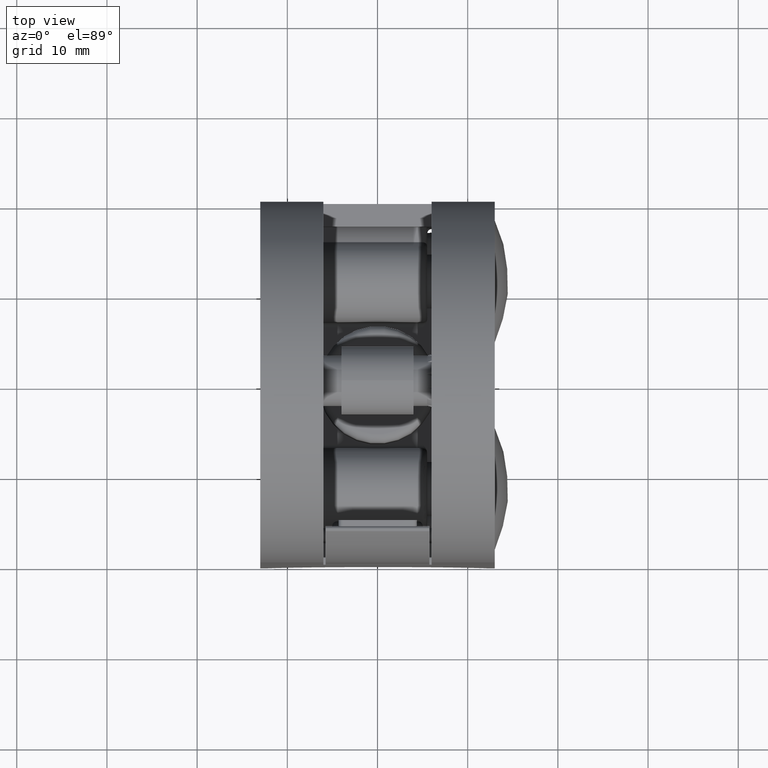
[diagram: clean part render]
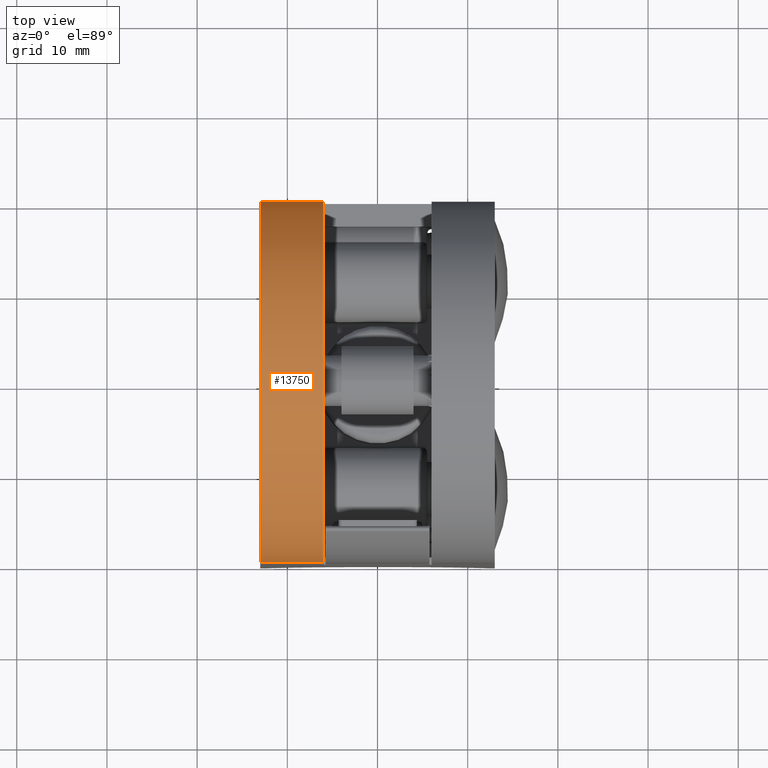
[diagram: same view with one face highlighted and labeled with its STEP entity id]
A machine part, top view. The second image highlights one B-rep face of the part: STEP entity #13750.
In plain terms, the highlighted cylindrical surface (partial cylindrical patch) has radius 20 mm, axis along (1, 0, 0).
Its self-contained STEP definition (entity closure, byte-faithful):
#2585 = EDGE_CURVE ( 'NONE', #7473, #5207, #47977, .T. ) ;
#2706 = ORIENTED_EDGE ( 'NONE', *, *, #21497, .T. ) ;
#5207 = VERTEX_POINT ( 'NONE', #6898 ) ;
#6693 = DIRECTION ( 'NONE',  ( 0.000000000000000000, 0.000000000000000000, -1.000000000000000000 ) ) ;
#6898 = CARTESIAN_POINT ( 'NONE',  ( 0.000000000000000000, -20.00000000000000355, 5.000000000000007994 ) ) ;
#7473 = VERTEX_POINT ( 'NONE', #70193 ) ;
#13750 = ADVANCED_FACE ( 'NONE', ( #28894 ), #57408, .T. ) ;
#17621 = CARTESIAN_POINT ( 'NONE',  ( 0.000000000000000000, -2.602085213965210642E-15, 5.000000000000004441 ) ) ;
#19040 = AXIS2_PLACEMENT_3D ( 'NONE', #39111, #38871, #55040 ) ;
#20323 = AXIS2_PLACEMENT_3D ( 'NONE', #65691, #43133, #59326 ) ;
#20696 = VECTOR ( 'NONE', #35102, 1000.000000000000000 ) ;
#21497 = EDGE_CURVE ( 'NONE', #54134, #5207, #61372, .T. ) ;
#24027 = EDGE_LOOP ( 'NONE', ( #54497, #40141, #68532, #2706 ) ) ;
#25000 = LINE ( 'NONE', #46004, #20696 ) ;
#28894 = FACE_OUTER_BOUND ( 'NONE', #24027, .T. ) ;
#29352 = CARTESIAN_POINT ( 'NONE',  ( -6.999999999999999112, -20.00000000000000355, 5.000000000000007994 ) ) ;
#34697 = CARTESIAN_POINT ( 'NONE',  ( -6.999999999999999112, -20.00000000000000355, 5.000000000000007994 ) ) ;
#35102 = DIRECTION ( 'NONE',  ( 1.000000000000000000, 0.000000000000000000, 0.000000000000000000 ) ) ;
#38871 = DIRECTION ( 'NONE',  ( 1.000000000000000000, 0.000000000000000000, 0.000000000000000000 ) ) ;
#39111 = CARTESIAN_POINT ( 'NONE',  ( -6.999999999999999112, -2.602085213965210642E-15, 5.000000000000004441 ) ) ;
#39859 = DIRECTION ( 'NONE',  ( 1.000000000000000000, 0.000000000000000000, 0.000000000000000000 ) ) ;
#40141 = ORIENTED_EDGE ( 'NONE', *, *, #50445, .F. ) ;
#42487 = EDGE_CURVE ( 'NONE', #63170, #54134, #55293, .T. ) ;
#43133 = DIRECTION ( 'NONE',  ( 1.000000000000000000, 0.000000000000000000, 0.000000000000000000 ) ) ;
#46004 = CARTESIAN_POINT ( 'NONE',  ( -6.999999999999999112, 20.00000000000000000, 5.000000000000007994 ) ) ;
#47977 = CIRCLE ( 'NONE', #58296, 20.00000000000000000 ) ;
#50445 = EDGE_CURVE ( 'NONE', #63170, #7473, #25000, .T. ) ;
#52084 = DIRECTION ( 'NONE',  ( 1.000000000000000000, 0.000000000000000000, 0.000000000000000000 ) ) ;
#54103 = CARTESIAN_POINT ( 'NONE',  ( -6.999999999999999112, 20.00000000000000000, 5.000000000000007994 ) ) ;
#54134 = VERTEX_POINT ( 'NONE', #34697 ) ;
#54497 = ORIENTED_EDGE ( 'NONE', *, *, #2585, .F. ) ;
#55040 = DIRECTION ( 'NONE',  ( 0.000000000000000000, 0.000000000000000000, -1.000000000000000000 ) ) ;
#55293 = CIRCLE ( 'NONE', #20323, 20.00000000000000000 ) ;
#56124 = VECTOR ( 'NONE', #52084, 1000.000000000000000 ) ;
#57408 = CYLINDRICAL_SURFACE ( 'NONE', #19040, 20.00000000000000000 ) ;
#58296 = AXIS2_PLACEMENT_3D ( 'NONE', #17621, #39859, #6693 ) ;
#59326 = DIRECTION ( 'NONE',  ( 0.000000000000000000, 0.000000000000000000, -1.000000000000000000 ) ) ;
#61372 = LINE ( 'NONE', #29352, #56124 ) ;
#63170 = VERTEX_POINT ( 'NONE', #54103 ) ;
#65691 = CARTESIAN_POINT ( 'NONE',  ( -6.999999999999999112, -2.602085213965210642E-15, 5.000000000000004441 ) ) ;
#68532 = ORIENTED_EDGE ( 'NONE', *, *, #42487, .T. ) ;
#70193 = CARTESIAN_POINT ( 'NONE',  ( 0.000000000000000000, 20.00000000000000000, 5.000000000000007994 ) ) ;